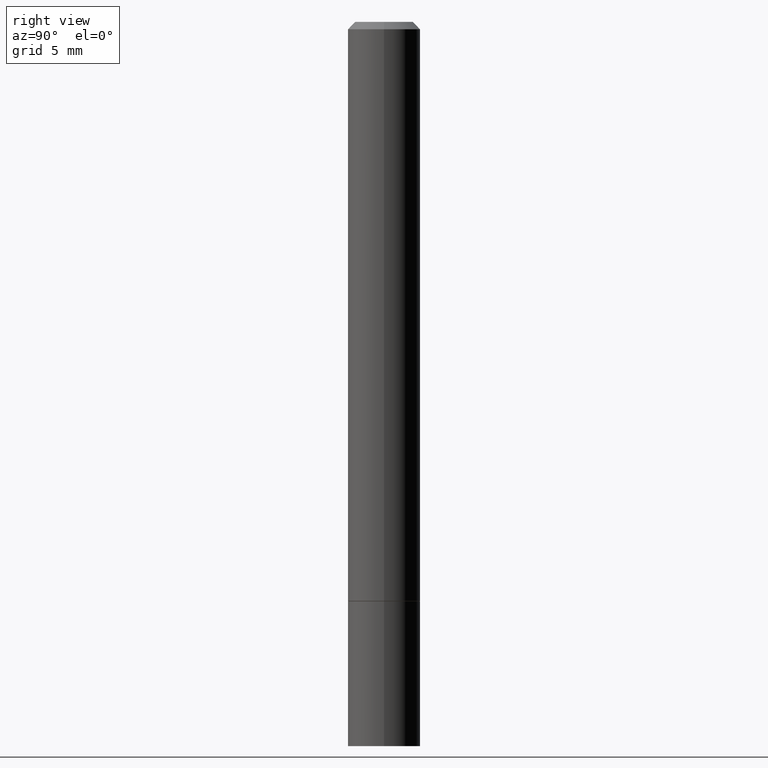
[diagram: clean part render]
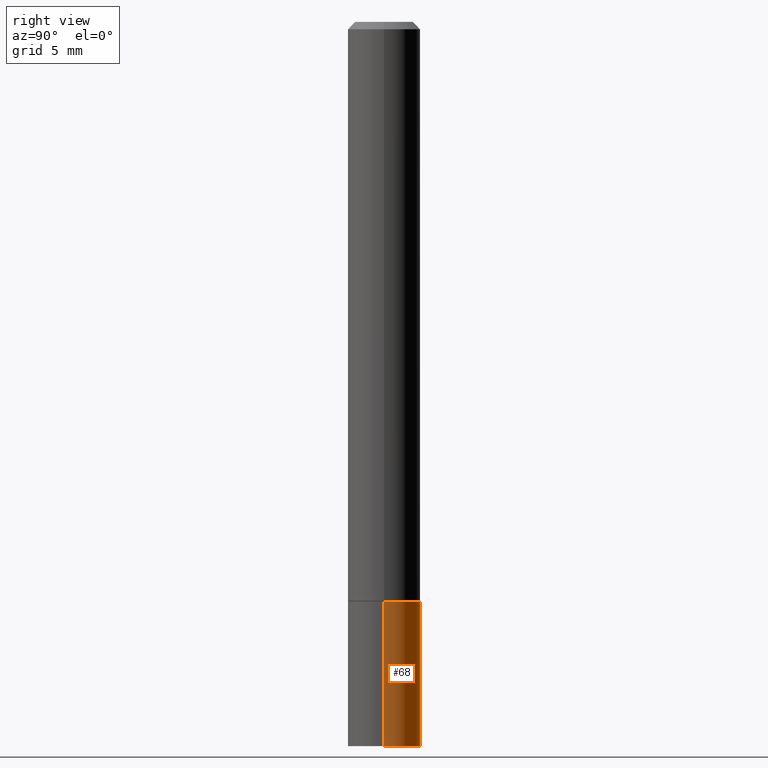
[diagram: same view with one face highlighted and labeled with its STEP entity id]
A machine part, right view. The second image highlights one B-rep face of the part: STEP entity #68.
In plain terms, the highlighted cylindrical surface (edge-blend (fillet) strip) has radius 2.5006 mm, axis along (-0, 0, 1).
Its self-contained STEP definition (entity closure, byte-faithful):
#2 = CARTESIAN_POINT ( 'NONE',  ( 0.09844999999999999585, -6.874726756182129545E-16, 4.800596035771099214E-30 ) ) ;
#8 = CARTESIAN_POINT ( 'NONE',  ( -0.09844999999999999585, -5.486153590605640426E-15, -1.968500000000000139 ) ) ;
#21 = VERTEX_POINT ( 'NONE', #343 ) ;
#26 = CARTESIAN_POINT ( 'NONE',  ( 0.09844999999999999585, -7.560453691130944267E-15, -1.968500000000000139 ) ) ;
#27 = DIRECTION ( 'NONE',  ( -2.445468806185136597E-29, 3.491481338843145583E-15, 1.000000000000000000 ) ) ;
#36 = ORIENTED_EDGE ( 'NONE', *, *, #261, .F. ) ;
#57 = DIRECTION ( 'NONE',  ( 1.000000000000000000, -6.982962677686266711E-15, 4.876176775795936353E-29 ) ) ;
#58 = AXIS2_PLACEMENT_3D ( 'NONE', #280, #114, #57 ) ;
#68 = ADVANCED_FACE ( 'NONE', ( #117 ), #205, .T. ) ;
#77 = LINE ( 'NONE', #2, #136 ) ;
#79 = ORIENTED_EDGE ( 'NONE', *, *, #309, .F. ) ;
#81 = VERTEX_POINT ( 'NONE', #344 ) ;
#82 = VERTEX_POINT ( 'NONE', #26 ) ;
#87 = CARTESIAN_POINT ( 'NONE',  ( 3.851124275980353356E-29, -5.498384812410186155E-15, -1.574800000000000200 ) ) ;
#105 = ORIENTED_EDGE ( 'NONE', *, *, #151, .T. ) ;
#114 = DIRECTION ( 'NONE',  ( -2.445468806185136597E-29, 3.491481338843145583E-15, 1.000000000000000000 ) ) ;
#117 = FACE_OUTER_BOUND ( 'NONE', #193, .T. ) ;
#136 = VECTOR ( 'NONE', #363, 39.37007874015748143 ) ;
#141 = DIRECTION ( 'NONE',  ( 1.000000000000000000, -6.982962677686265922E-15, 0.000000000000000000 ) ) ;
#142 = EDGE_CURVE ( 'NONE', #82, #150, #155, .T. ) ;
#150 = VERTEX_POINT ( 'NONE', #8 ) ;
#151 = EDGE_CURVE ( 'NONE', #150, #21, #216, .T. ) ;
#155 = CIRCLE ( 'NONE', #268, 0.09844999999999999585 ) ;
#157 = VECTOR ( 'NONE', #353, 39.37007874015748143 ) ;
#171 = CARTESIAN_POINT ( 'NONE',  ( 4.813905344975441835E-29, -6.872981015512731707E-15, -1.968500000000000139 ) ) ;
#193 = EDGE_LOOP ( 'NONE', ( #293, #105, #79, #36 ) ) ;
#200 = DIRECTION ( 'NONE',  ( 1.000000000000000000, -6.982962677686265922E-15, 0.000000000000000000 ) ) ;
#205 = CYLINDRICAL_SURFACE ( 'NONE', #58, 0.09844999999999999585 ) ;
#216 = LINE ( 'NONE', #322, #157 ) ;
#225 = AXIS2_PLACEMENT_3D ( 'NONE', #87, #27, #200 ) ;
#261 = EDGE_CURVE ( 'NONE', #82, #81, #77, .T. ) ;
#268 = AXIS2_PLACEMENT_3D ( 'NONE', #171, #282, #141 ) ;
#278 = CIRCLE ( 'NONE', #225, 0.09844999999999999585 ) ;
#280 = CARTESIAN_POINT ( 'NONE',  ( 0.000000000000000000, 0.000000000000000000, 0.000000000000000000 ) ) ;
#282 = DIRECTION ( 'NONE',  ( -2.445468806185136597E-29, 3.491481338843145583E-15, 1.000000000000000000 ) ) ;
#293 = ORIENTED_EDGE ( 'NONE', *, *, #142, .T. ) ;
#309 = EDGE_CURVE ( 'NONE', #81, #21, #278, .T. ) ;
#322 = CARTESIAN_POINT ( 'NONE',  ( -0.09844999999999999585, 6.995293233558186035E-16, -4.842691596355954042E-30 ) ) ;
#343 = CARTESIAN_POINT ( 'NONE',  ( -0.09844999999999999585, -5.486153590605640426E-15, -1.574800000000000200 ) ) ;
#344 = CARTESIAN_POINT ( 'NONE',  ( 0.09844999999999999585, -6.185857488028398715E-15, -1.574800000000000200 ) ) ;
#353 = DIRECTION ( 'NONE',  ( -2.445468806185136877E-29, 3.491481338843145188E-15, 1.000000000000000000 ) ) ;
#363 = DIRECTION ( 'NONE',  ( -2.445468806185136877E-29, 3.491481338843145188E-15, 1.000000000000000000 ) ) ;